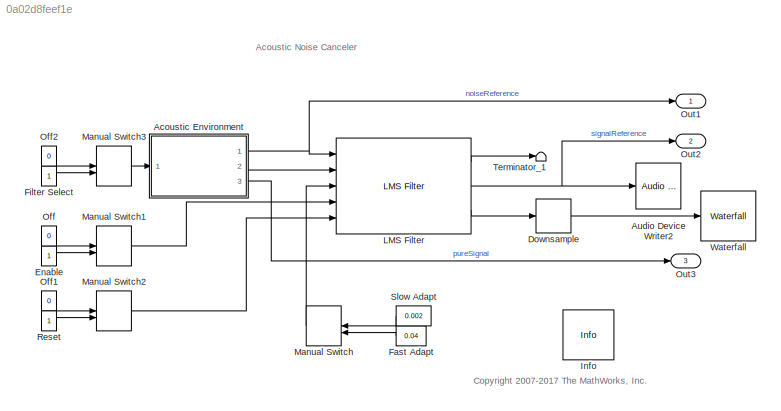
MODEL slx_0a02d8feef1e
KIND model
CONFIG AbsTol = auto
CONFIG EnableMultiTasking = on
CONFIG FixedStep = auto
CONFIG MaxStep = auto
CONFIG MinStep = auto
CONFIG RelTol = 1e-3
CONFIG SampleTimeConstraint = Unconstrained
CONFIG Solver = FixedStepDiscrete
CONFIG SolverName = FixedStepDiscrete
CONFIG StartTime = 0.0
CONFIG StopTime = 5
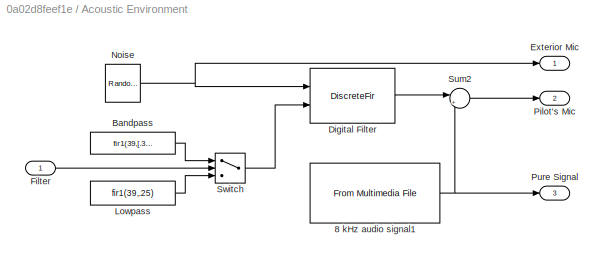
BLOCK [SubSystem] Acoustic Environment
  Ports = [1, 3]
  RequestExecContextInheritance = off
  Variant = off
BLOCK [Reference] Acoustic Environment/8 kHz audio signal1  REF=dspvision/From Multimedia File
  Ports = [0, 1]
  SourceBlock = dspvision/From Multimedia File
  SourceProductBaseCode = VP
  SourceProductName = Computer Vision System Toolbox
  SourceType = From Multimedia File
BLOCK [Constant] Acoustic Environment/Bandpass
  OutDataTypeStr = Inherit: Inherit via back propagation
  Value = fir1(39,[.3 .5])
BLOCK [DiscreteFir] Acoustic Environment/Digital Filter
  AccumDataTypeStr = Inherit: Same as product output
  CoefSource = Input port
  Coefficients = [1 2]
  InputPortMap = u0,u1
  InputProcessing = Columns as channels (frame based)
  OutDataTypeStr = Inherit: Same as input
  OutputPortMap = o0
  Ports = [2, 1]
  ProductDataTypeStr = Inherit: Same as input
  StateDataTypeStr = Inherit: Same as input
BLOCK [Outport] Acoustic Environment/Exterior Mic
  IconDisplay = Port number
BLOCK [Inport] Acoustic Environment/Filter
  IconDisplay = Port number
BLOCK [Constant] Acoustic Environment/Lowpass
  OutDataTypeStr = Inherit: Inherit via back propagation
  Value = fir1(39,.25)
BLOCK [Reference] Acoustic Environment/Noise  REF=dspsrcs4/Random
Source
  Ports = [0, 1]
  SourceBlock = dspsrcs4/Random\nSource
  SourceProductBaseCode = DS
  SourceProductName = DSP System Toolbox
  SourceType = Random Source
BLOCK [Outport] Acoustic Environment/Pilot's Mic
  IconDisplay = Port number
  Port = 2
BLOCK [Outport] Acoustic Environment/Pure Signal
  IconDisplay = Port number
  Port = 3
BLOCK [Sum] Acoustic Environment/Sum2
  IconShape = round
  Inputs = |++
  Ports = [2, 1]
BLOCK [Switch] Acoustic Environment/Switch
  Criteria = u2 ~= 0
  InputSameDT = off
BLOCK [Reference] Audio Device Writer2  REF=dspsnks4/Audio Device
Writer
  Ports = [1]
  SourceBlock = dspsnks4/Audio Device\nWriter
  SourceProductBaseCode = DS
  SourceProductName = DSP System Toolbox
  SourceType = Audio Device Writer
BLOCK [DownSample] Downsample
  InputProcessing = Elements as channels (sample based)
  N = 32
  RateOptions = Allow multirate processing
  UserDataPersistent = on
BLOCK [Constant] Enable
  OutDataTypeStr = boolean
BLOCK [Constant] Fast Adapt
  OutDataTypeStr = Inherit: Inherit via back propagation
  Value = 0.04
BLOCK [Constant] Filter Select
  OutDataTypeStr = boolean
BLOCK [Reference] Info  REF=audioutils/Info
  Ports = []
  SourceBlock = audioutils/Info
  SourceProductBaseCode = AU
  SourceProductName = Audio System Toolbox
  SourceType = Info
BLOCK [Reference] LMS Filter  REF=dspadpt3/LMS Filter
  Ports = [5, 3]
  SourceBlock = dspadpt3/LMS Filter
  SourceProductBaseCode = DS
  SourceProductName = DSP System Toolbox
  SourceType = LMS Filter
BLOCK [ManualSwitch] Manual Switch
  CurrentSetting = 0
BLOCK [ManualSwitch] Manual Switch1
  CurrentSetting = 0
BLOCK [ManualSwitch] Manual Switch2
BLOCK [ManualSwitch] Manual Switch3
BLOCK [Constant] Off
  OutDataTypeStr = boolean
  Value = 0
BLOCK [Constant] Off1
  OutDataTypeStr = boolean
  Value = 0
BLOCK [Constant] Off2
  OutDataTypeStr = boolean
  Value = 0
BLOCK [Outport] Out1
  IconDisplay = Port number
BLOCK [Outport] Out2
  IconDisplay = Port number
  Port = 2
BLOCK [Outport] Out3
  IconDisplay = Port number
  Port = 3
BLOCK [Constant] Reset
  OutDataTypeStr = boolean
BLOCK [Constant] Slow Adapt
  OutDataTypeStr = Inherit: Inherit via back propagation
  Value = 0.002
BLOCK [Terminator] Terminator_1
BLOCK [Reference] Waterfall  REF=dspsnks4/Waterfall
  Ports = [1]
  SourceBlock = dspsnks4/Waterfall
  SourceProductBaseCode = DS
  SourceProductName = DSP System Toolbox
  SourceType = Waterfall
ANNOTATION (root): Acoustic Noise Canceler
ANNOTATION (root): <copyright redacted>
NET Acoustic Environment/8 kHz audio signal1:1 -> Acoustic Environment/Pure Signal:1, Acoustic Environment/Sum2:2
LINE Acoustic Environment/Bandpass:1 -> Acoustic Environment/Switch:1
LINE Acoustic Environment/Digital Filter:1 -> Acoustic Environment/Sum2:1
LINE Acoustic Environment/Filter:1 -> Acoustic Environment/Switch:2
LINE Acoustic Environment/Lowpass:1 -> Acoustic Environment/Switch:3
NET Acoustic Environment/Noise:1 -> Acoustic Environment/Digital Filter:1, Acoustic Environment/Exterior Mic:1
LINE Acoustic Environment/Sum2:1 -> Acoustic Environment/Pilot's Mic:1
LINE Acoustic Environment/Switch:1 -> Acoustic Environment/Digital Filter:2
NET Acoustic Environment:1 -> LMS Filter:1, Out1:1
LINE Acoustic Environment:2 -> LMS Filter:2
LINE Acoustic Environment:3 -> Out3:1
LINE Downsample:1 -> Waterfall:1
LINE Enable:1 -> Manual Switch1:2
LINE Fast Adapt:1 -> Manual Switch:2
LINE Filter Select:1 -> Manual Switch3:2
LINE LMS Filter:1 -> Terminator_1:1
NET LMS Filter:2 -> Audio Device Writer2:1, Out2:1
LINE LMS Filter:3 -> Downsample:1
LINE Manual Switch1:1 -> LMS Filter:4
LINE Manual Switch2:1 -> LMS Filter:5
LINE Manual Switch3:1 -> Acoustic Environment:1
LINE Manual Switch:1 -> LMS Filter:3
LINE Off1:1 -> Manual Switch2:1
LINE Off2:1 -> Manual Switch3:1
LINE Off:1 -> Manual Switch1:1
LINE Reset:1 -> Manual Switch2:2
LINE Slow Adapt:1 -> Manual Switch:1
note: NET lines group one-source signal fan-out (src -> all destinations, sorted); 1:1 wires keep LINE
